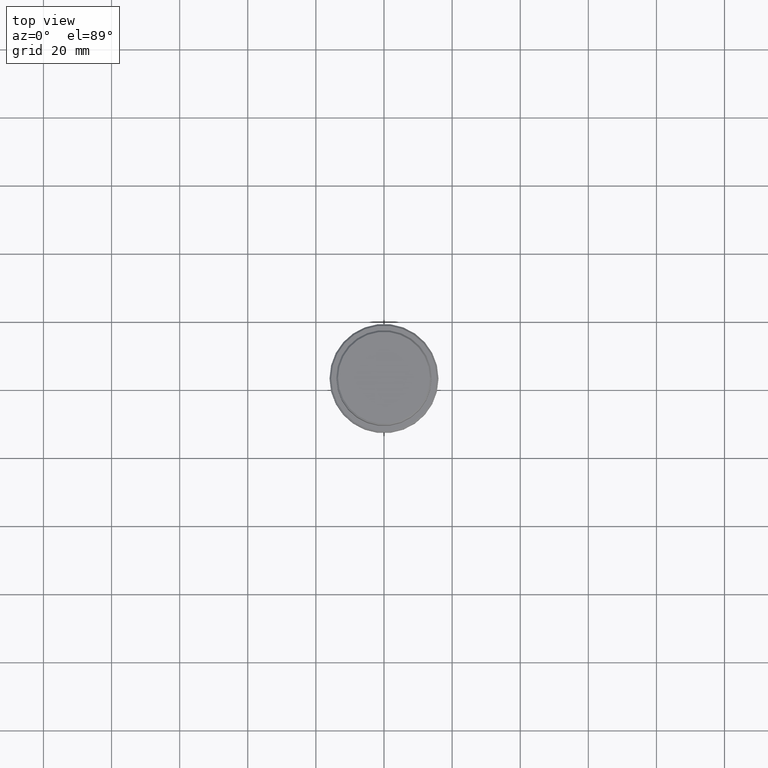
[diagram: clean part render]
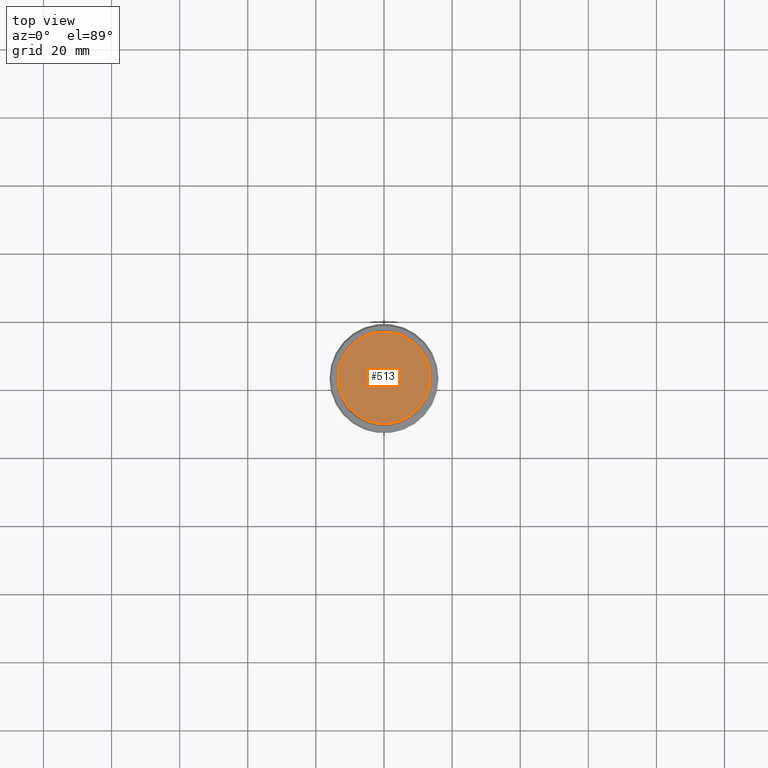
[diagram: same view with one face highlighted and labeled with its STEP entity id]
A machine part, top view. The second image highlights one B-rep face of the part: STEP entity #513.
In plain terms, the highlighted planar face has unit normal (0, -0, 1).
Its self-contained STEP definition (entity closure, byte-faithful):
#27 = DIRECTION ( 'NONE',  ( 1.000000000000000000, 0.000000000000000000, 0.000000000000000000 ) ) ;
#81 = ORIENTED_EDGE ( 'NONE', *, *, #976, .T. ) ;
#140 = AXIS2_PLACEMENT_3D ( 'NONE', #576, #468, #27 ) ;
#278 = CARTESIAN_POINT ( 'NONE',  ( 0.000000000000000000, 0.000000000000000000, 0.000000000000000000 ) ) ;
#345 = CARTESIAN_POINT ( 'NONE',  ( 0.000000000000000000, 0.000000000000000000, 0.000000000000000000 ) ) ;
#347 = EDGE_LOOP ( 'NONE', ( #81, #918 ) ) ;
#378 = CIRCLE ( 'NONE', #140, 13.49999999999998579 ) ;
#392 = PLANE ( 'NONE',  #1037 ) ;
#399 = DIRECTION ( 'NONE',  ( 0.000000000000000000, -0.000000000000000000, 1.000000000000000000 ) ) ;
#410 = FACE_OUTER_BOUND ( 'NONE', #347, .T. ) ;
#468 = DIRECTION ( 'NONE',  ( -0.000000000000000000, -0.000000000000000000, 1.000000000000000000 ) ) ;
#513 = ADVANCED_FACE ( 'NONE', ( #410 ), #392, .T. ) ;
#576 = CARTESIAN_POINT ( 'NONE',  ( 0.000000000000000000, 0.000000000000000000, 0.000000000000000000 ) ) ;
#584 = CIRCLE ( 'NONE', #1318, 13.49999999999998579 ) ;
#597 = VERTEX_POINT ( 'NONE', #813 ) ;
#685 = EDGE_CURVE ( 'NONE', #914, #597, #584, .T. ) ;
#705 = DIRECTION ( 'NONE',  ( -0.000000000000000000, -0.000000000000000000, 1.000000000000000000 ) ) ;
#813 = CARTESIAN_POINT ( 'NONE',  ( -13.49999999999998579, 0.000000000000000000, 0.000000000000000000 ) ) ;
#914 = VERTEX_POINT ( 'NONE', #1294 ) ;
#918 = ORIENTED_EDGE ( 'NONE', *, *, #685, .T. ) ;
#976 = EDGE_CURVE ( 'NONE', #597, #914, #378, .T. ) ;
#1037 = AXIS2_PLACEMENT_3D ( 'NONE', #278, #399, #1159 ) ;
#1159 = DIRECTION ( 'NONE',  ( 1.000000000000000000, 0.000000000000000000, 0.000000000000000000 ) ) ;
#1294 = CARTESIAN_POINT ( 'NONE',  ( 13.49999999999998579, 1.683889348827608879E-15, 0.000000000000000000 ) ) ;
#1318 = AXIS2_PLACEMENT_3D ( 'NONE', #345, #705, #1360 ) ;
#1360 = DIRECTION ( 'NONE',  ( 1.000000000000000000, 0.000000000000000000, 0.000000000000000000 ) ) ;